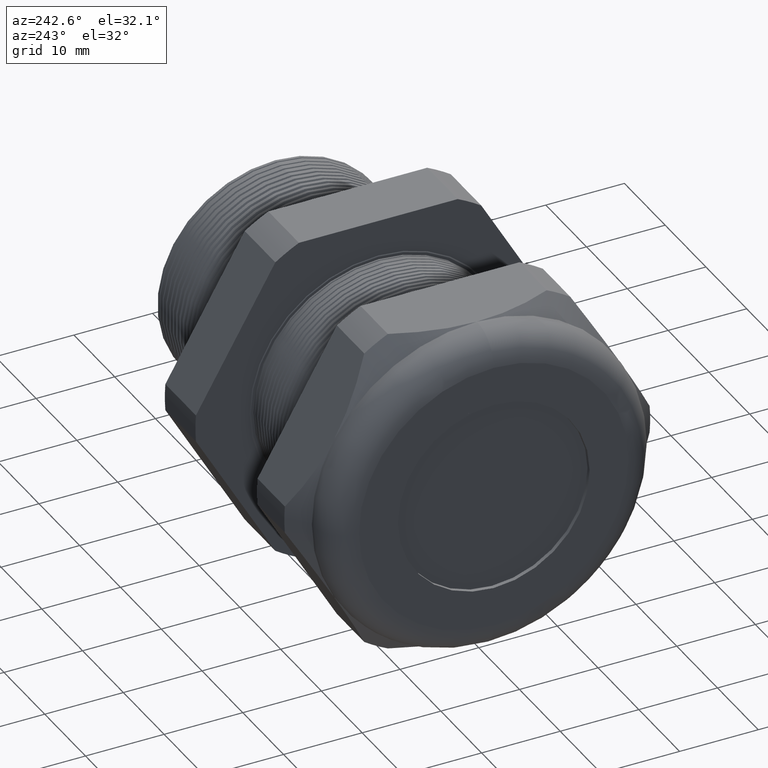
[diagram: clean part render]
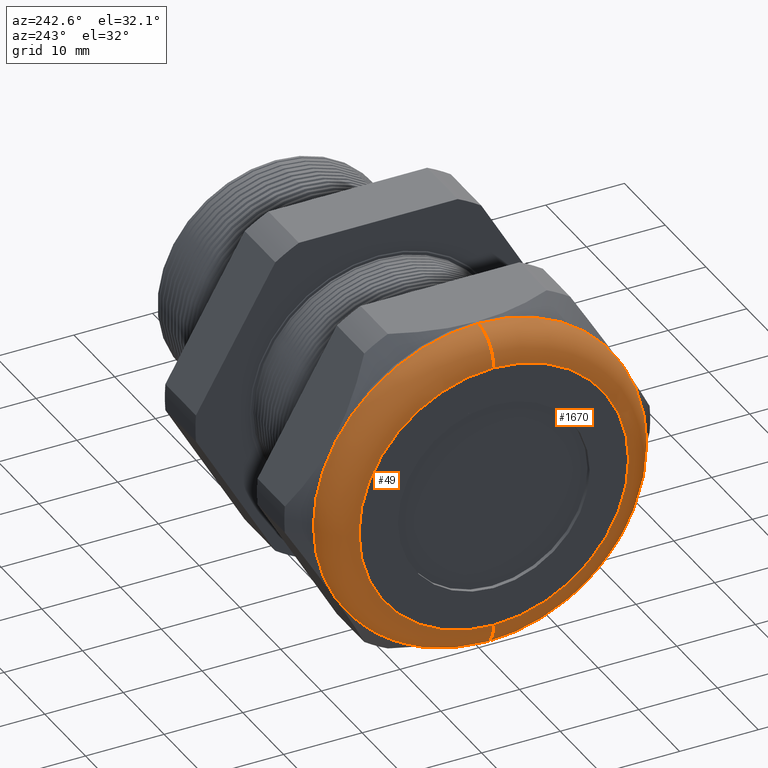
[diagram: same view with one multi-face feature highlighted, each face labeled with its STEP entity id]
A machine part, auxiliary view. The highlighted faces form ONE feature: a constant-radius fillet chain: 2 tangent blend faces with common blend radius 3.81 mm. The faces share edges in the B-rep.
Their STEP definitions:
[1] entity #49 (Torus):
#46 = ORIENTED_EDGE ( 'NONE', *, *, #50, .F. ) ;
#48 = EDGE_LOOP ( 'NONE', ( #46, #96, #92, #79 ) ) ;
#49 = ADVANCED_FACE ( 'NONE', ( #2401 ), #2400, .T. ) ;
#50 = EDGE_CURVE ( 'NONE', #51, #93, #2463, .T. ) ;
#51 = VERTEX_POINT ( 'NONE', #2458 ) ;
#76 = VERTEX_POINT ( 'NONE', #2481 ) ;
#77 = VERTEX_POINT ( 'NONE', #2480 ) ;
#79 = ORIENTED_EDGE ( 'NONE', *, *, #88, .F. ) ;
#88 = EDGE_CURVE ( 'NONE', #93, #77, #2530, .T. ) ;
#91 = EDGE_CURVE ( 'NONE', #77, #76, #2513, .T. ) ;
#92 = ORIENTED_EDGE ( 'NONE', *, *, #91, .F. ) ;
#93 = VERTEX_POINT ( 'NONE', #2509 ) ;
#95 = EDGE_CURVE ( 'NONE', #51, #76, #2508, .T. ) ;
#96 = ORIENTED_EDGE ( 'NONE', *, *, #95, .T. ) ;
#2400 = TOROIDAL_SURFACE ( 'NONE', #2467, 0.6750000000000000400, 0.1499999999999999900 ) ;
#2401 = FACE_OUTER_BOUND ( 'NONE', #48, .T. ) ;
#2458 = CARTESIAN_POINT ( 'NONE',  ( -1.569999999999999800, 0.0000000000000000000, -0.8250000000000000700 ) ) ;
#2459 = DIRECTION ( 'NONE',  ( 0.0000000000000000000, 0.0000000000000000000, 1.000000000000000000 ) ) ;
#2460 = DIRECTION ( 'NONE',  ( 1.000000000000000000, 0.0000000000000000000, 0.0000000000000000000 ) ) ;
#2461 = CARTESIAN_POINT ( 'NONE',  ( -1.569999999999999800, 0.0000000000000000000, 0.0000000000000000000 ) ) ;
#2462 = AXIS2_PLACEMENT_3D ( 'NONE', #2461, #2460, #2459 ) ;
#2463 = CIRCLE ( 'NONE', #2462, 0.8250000000000000700 ) ;
#2464 = DIRECTION ( 'NONE',  ( 0.0000000000000000000, 0.0000000000000000000, 1.000000000000000000 ) ) ;
#2465 = DIRECTION ( 'NONE',  ( -1.000000000000000000, 0.0000000000000000000, 0.0000000000000000000 ) ) ;
#2466 = CARTESIAN_POINT ( 'NONE',  ( -1.569999999999999800, 0.0000000000000000000, 0.0000000000000000000 ) ) ;
#2467 = AXIS2_PLACEMENT_3D ( 'NONE', #2466, #2465, #2464 ) ;
#2480 = CARTESIAN_POINT ( 'NONE',  ( -1.720000000000000000, 0.0000000000000000000, 0.6750000000000000400 ) ) ;
#2481 = CARTESIAN_POINT ( 'NONE',  ( -1.720000000000000000, 9.184850993605148400E-017, -0.6750000000000000400 ) ) ;
#2504 = DIRECTION ( 'NONE',  ( 0.0000000000000000000, -1.224646799147353200E-016, 1.000000000000000000 ) ) ;
#2505 = DIRECTION ( 'NONE',  ( 0.0000000000000000000, 1.000000000000000000, 1.224646799147353200E-016 ) ) ;
#2506 = CARTESIAN_POINT ( 'NONE',  ( -1.569999999999999800, 8.266365894244635600E-017, -0.6750000000000000400 ) ) ;
#2507 = AXIS2_PLACEMENT_3D ( 'NONE', #2506, #2505, #2504 ) ;
#2508 = CIRCLE ( 'NONE', #2507, 0.1499999999999999700 ) ;
#2509 = CARTESIAN_POINT ( 'NONE',  ( -1.569999999999999800, 1.010333609296566500E-016, 0.8250000000000000700 ) ) ;
#2510 = DIRECTION ( 'NONE',  ( 0.0000000000000000000, 0.0000000000000000000, 1.000000000000000000 ) ) ;
#2511 = DIRECTION ( 'NONE',  ( -1.000000000000000000, 0.0000000000000000000, 0.0000000000000000000 ) ) ;
#2512 = AXIS2_PLACEMENT_3D ( 'NONE', #2521, #2511, #2510 ) ;
#2513 = CIRCLE ( 'NONE', #2512, 0.6750000000000000400 ) ;
#2521 = CARTESIAN_POINT ( 'NONE',  ( -1.720000000000000000, 0.0000000000000000000, 0.0000000000000000000 ) ) ;
#2523 = DIRECTION ( 'NONE',  ( 0.0000000000000000000, 0.0000000000000000000, -1.000000000000000000 ) ) ;
#2524 = DIRECTION ( 'NONE',  ( 0.0000000000000000000, -1.000000000000000000, 0.0000000000000000000 ) ) ;
#2525 = CARTESIAN_POINT ( 'NONE',  ( -1.569999999999999800, 0.0000000000000000000, 0.6750000000000000400 ) ) ;
#2526 = AXIS2_PLACEMENT_3D ( 'NONE', #2525, #2524, #2523 ) ;
#2530 = CIRCLE ( 'NONE', #2526, 0.1499999999999999700 ) ;
[2] entity #1670 (Torus):
#51 = VERTEX_POINT ( 'NONE', #2458 ) ;
#76 = VERTEX_POINT ( 'NONE', #2481 ) ;
#77 = VERTEX_POINT ( 'NONE', #2480 ) ;
#88 = EDGE_CURVE ( 'NONE', #93, #77, #2530, .T. ) ;
#93 = VERTEX_POINT ( 'NONE', #2509 ) ;
#95 = EDGE_CURVE ( 'NONE', #51, #76, #2508, .T. ) ;
#1502 = EDGE_CURVE ( 'NONE', #76, #77, #5383, .T. ) ;
#1516 = EDGE_CURVE ( 'NONE', #93, #51, #5356, .T. ) ;
#1670 = ADVANCED_FACE ( 'NONE', ( #5644 ), #5643, .T. ) ;
#1671 = EDGE_LOOP ( 'NONE', ( #1723, #1724, #1726, #1727 ) ) ;
#1723 = ORIENTED_EDGE ( 'NONE', *, *, #95, .F. ) ;
#1724 = ORIENTED_EDGE ( 'NONE', *, *, #1516, .F. ) ;
#1726 = ORIENTED_EDGE ( 'NONE', *, *, #88, .T. ) ;
#1727 = ORIENTED_EDGE ( 'NONE', *, *, #1502, .F. ) ;
#2458 = CARTESIAN_POINT ( 'NONE',  ( -1.569999999999999800, 0.0000000000000000000, -0.8250000000000000700 ) ) ;
#2480 = CARTESIAN_POINT ( 'NONE',  ( -1.720000000000000000, 0.0000000000000000000, 0.6750000000000000400 ) ) ;
#2481 = CARTESIAN_POINT ( 'NONE',  ( -1.720000000000000000, 9.184850993605148400E-017, -0.6750000000000000400 ) ) ;
#2504 = DIRECTION ( 'NONE',  ( 0.0000000000000000000, -1.224646799147353200E-016, 1.000000000000000000 ) ) ;
#2505 = DIRECTION ( 'NONE',  ( 0.0000000000000000000, 1.000000000000000000, 1.224646799147353200E-016 ) ) ;
#2506 = CARTESIAN_POINT ( 'NONE',  ( -1.569999999999999800, 8.266365894244635600E-017, -0.6750000000000000400 ) ) ;
#2507 = AXIS2_PLACEMENT_3D ( 'NONE', #2506, #2505, #2504 ) ;
#2508 = CIRCLE ( 'NONE', #2507, 0.1499999999999999700 ) ;
#2509 = CARTESIAN_POINT ( 'NONE',  ( -1.569999999999999800, 1.010333609296566500E-016, 0.8250000000000000700 ) ) ;
#2523 = DIRECTION ( 'NONE',  ( 0.0000000000000000000, 0.0000000000000000000, -1.000000000000000000 ) ) ;
#2524 = DIRECTION ( 'NONE',  ( 0.0000000000000000000, -1.000000000000000000, 0.0000000000000000000 ) ) ;
#2525 = CARTESIAN_POINT ( 'NONE',  ( -1.569999999999999800, 0.0000000000000000000, 0.6750000000000000400 ) ) ;
#2526 = AXIS2_PLACEMENT_3D ( 'NONE', #2525, #2524, #2523 ) ;
#2530 = CIRCLE ( 'NONE', #2526, 0.1499999999999999700 ) ;
#5356 = CIRCLE ( 'NONE', #5421, 0.8250000000000000700 ) ;
#5379 = DIRECTION ( 'NONE',  ( 0.0000000000000000000, 0.0000000000000000000, 1.000000000000000000 ) ) ;
#5380 = DIRECTION ( 'NONE',  ( -1.000000000000000000, 0.0000000000000000000, 0.0000000000000000000 ) ) ;
#5381 = CARTESIAN_POINT ( 'NONE',  ( -1.720000000000000000, 0.0000000000000000000, 0.0000000000000000000 ) ) ;
#5382 = AXIS2_PLACEMENT_3D ( 'NONE', #5381, #5380, #5379 ) ;
#5383 = CIRCLE ( 'NONE', #5382, 0.6750000000000000400 ) ;
#5418 = DIRECTION ( 'NONE',  ( 0.0000000000000000000, 0.0000000000000000000, 1.000000000000000000 ) ) ;
#5419 = DIRECTION ( 'NONE',  ( 1.000000000000000000, 0.0000000000000000000, 0.0000000000000000000 ) ) ;
#5420 = CARTESIAN_POINT ( 'NONE',  ( -1.569999999999999800, 0.0000000000000000000, 0.0000000000000000000 ) ) ;
#5421 = AXIS2_PLACEMENT_3D ( 'NONE', #5420, #5419, #5418 ) ;
#5639 = DIRECTION ( 'NONE',  ( 0.0000000000000000000, 0.0000000000000000000, 1.000000000000000000 ) ) ;
#5640 = DIRECTION ( 'NONE',  ( -1.000000000000000000, 0.0000000000000000000, 0.0000000000000000000 ) ) ;
#5641 = CARTESIAN_POINT ( 'NONE',  ( -1.569999999999999800, 0.0000000000000000000, 0.0000000000000000000 ) ) ;
#5642 = AXIS2_PLACEMENT_3D ( 'NONE', #5641, #5640, #5639 ) ;
#5643 = TOROIDAL_SURFACE ( 'NONE', #5642, 0.6750000000000000400, 0.1499999999999999900 ) ;
#5644 = FACE_OUTER_BOUND ( 'NONE', #1671, .T. ) ;